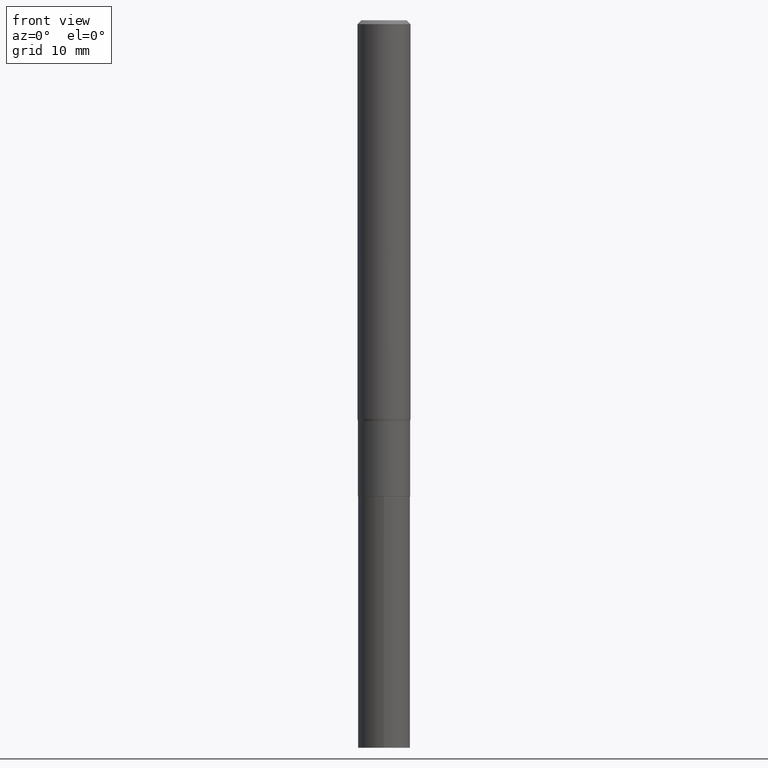
[diagram: clean part render]
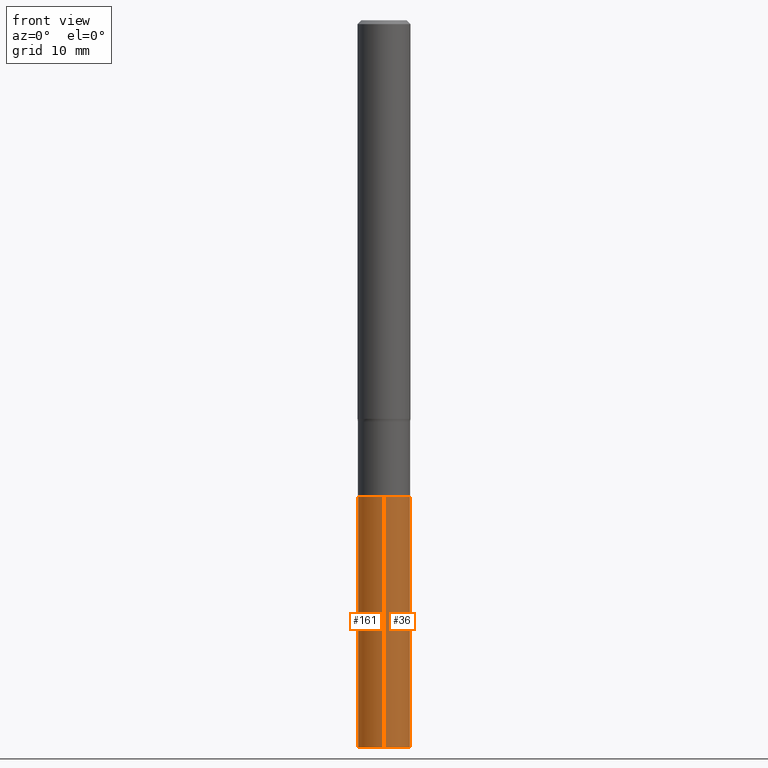
[diagram: same view with one multi-face feature highlighted, each face labeled with its STEP entity id]
A machine part, front view. The highlighted faces form ONE feature: a constant-radius fillet chain: 2 tangent blend faces with common blend radius 3.9497 mm. The faces share edges in the B-rep.
Their STEP definitions:
[1] entity #36 (Cylinder):
#15 = EDGE_CURVE ( 'NONE', #348, #135, #421, .T. ) ;
#23 = CARTESIAN_POINT ( 'NONE',  ( 1.059052181758107427E-28, -1.512065839414336504E-14, -4.330700000000001104 ) ) ;
#36 = ADVANCED_FACE ( 'NONE', ( #238 ), #380, .T. ) ;
#61 = ORIENTED_EDGE ( 'NONE', *, *, #180, .T. ) ;
#88 = DIRECTION ( 'NONE',  ( -6.982962677686265133E-15, -1.000000000000000000, 3.513630860018345064E-15 ) ) ;
#92 = AXIS2_PLACEMENT_3D ( 'NONE', #23, #458, #132 ) ;
#96 = DIRECTION ( 'NONE',  ( -2.445422053935872077E-29, 3.491548290725064953E-15, 1.000000000000000000 ) ) ;
#125 = DIRECTION ( 'NONE',  ( -2.445422053935872077E-29, 3.491548290725064953E-15, 1.000000000000000000 ) ) ;
#132 = DIRECTION ( 'NONE',  ( -6.982962677686265133E-15, -1.000000000000000000, 3.513630860018345064E-15 ) ) ;
#135 = VERTEX_POINT ( 'NONE', #468 ) ;
#145 = LINE ( 'NONE', #284, #350 ) ;
#150 = CARTESIAN_POINT ( 'NONE',  ( -1.085850696380108364E-15, -0.1555000000000151261, -4.330700000000000216 ) ) ;
#164 = ORIENTED_EDGE ( 'NONE', *, *, #435, .F. ) ;
#180 = EDGE_CURVE ( 'NONE', #281, #332, #145, .T. ) ;
#189 = AXIS2_PLACEMENT_3D ( 'NONE', #240, #382, #205 ) ;
#205 = DIRECTION ( 'NONE',  ( -6.982962677686265133E-15, -1.000000000000000000, 3.513630860018345064E-15 ) ) ;
#230 = ORIENTED_EDGE ( 'NONE', *, *, #450, .T. ) ;
#238 = FACE_OUTER_BOUND ( 'NONE', #346, .T. ) ;
#240 = CARTESIAN_POINT ( 'NONE',  ( 6.932170424893007423E-29, -9.897302151218665974E-15, -2.834700000000000220 ) ) ;
#281 = VERTEX_POINT ( 'NONE', #367 ) ;
#284 = CARTESIAN_POINT ( 'NONE',  ( 1.104893954107024810E-15, 0.1554999999999900906, -2.834700000000000664 ) ) ;
#302 = CIRCLE ( 'NONE', #434, 0.1554999999999999993 ) ;
#309 = CARTESIAN_POINT ( 'NONE',  ( -1.085850696380145046E-15, -0.1555000000000098803, -2.834699999999999775 ) ) ;
#332 = VERTEX_POINT ( 'NONE', #366 ) ;
#342 = CIRCLE ( 'NONE', #92, 0.1554999999999999993 ) ;
#346 = EDGE_LOOP ( 'NONE', ( #230, #61, #164, #374 ) ) ;
#348 = VERTEX_POINT ( 'NONE', #150 ) ;
#350 = VECTOR ( 'NONE', #427, 39.37007874015748143 ) ;
#366 = CARTESIAN_POINT ( 'NONE',  ( 1.104893954107061689E-15, 0.1554999999999900906, -2.834700000000000664 ) ) ;
#367 = CARTESIAN_POINT ( 'NONE',  ( 1.104893954107042953E-15, 0.1554999999999848725, -4.330700000000001104 ) ) ;
#374 = ORIENTED_EDGE ( 'NONE', *, *, #15, .F. ) ;
#380 = CYLINDRICAL_SURFACE ( 'NONE', #189, 0.1554999999999999993 ) ;
#381 = CARTESIAN_POINT ( 'NONE',  ( 6.932170424893007423E-29, -9.897302151218665974E-15, -2.834700000000000220 ) ) ;
#382 = DIRECTION ( 'NONE',  ( -2.445422053935872077E-29, 3.491548290725064953E-15, 1.000000000000000000 ) ) ;
#391 = VECTOR ( 'NONE', #96, 39.37007874015748143 ) ;
#421 = LINE ( 'NONE', #309, #391 ) ;
#427 = DIRECTION ( 'NONE',  ( -2.445422053935872077E-29, 3.491548290725064953E-15, 1.000000000000000000 ) ) ;
#434 = AXIS2_PLACEMENT_3D ( 'NONE', #381, #125, #88 ) ;
#435 = EDGE_CURVE ( 'NONE', #135, #332, #302, .T. ) ;
#450 = EDGE_CURVE ( 'NONE', #348, #281, #342, .T. ) ;
#458 = DIRECTION ( 'NONE',  ( -2.445422053935872077E-29, 3.491548290725064953E-15, 1.000000000000000000 ) ) ;
#468 = CARTESIAN_POINT ( 'NONE',  ( -1.085850696380145046E-15, -0.1555000000000098803, -2.834699999999999775 ) ) ;
[2] entity #161 (Cylinder):
#10 = AXIS2_PLACEMENT_3D ( 'NONE', #51, #224, #268 ) ;
#15 = EDGE_CURVE ( 'NONE', #348, #135, #421, .T. ) ;
#32 = DIRECTION ( 'NONE',  ( -2.445422053935872077E-29, 3.491548290725064953E-15, 1.000000000000000000 ) ) ;
#40 = DIRECTION ( 'NONE',  ( -2.445422053935872077E-29, 3.491548290725064953E-15, 1.000000000000000000 ) ) ;
#50 = EDGE_CURVE ( 'NONE', #332, #135, #327, .T. ) ;
#51 = CARTESIAN_POINT ( 'NONE',  ( 1.059052181758107427E-28, -1.512065839414336504E-14, -4.330700000000001104 ) ) ;
#96 = DIRECTION ( 'NONE',  ( -2.445422053935872077E-29, 3.491548290725064953E-15, 1.000000000000000000 ) ) ;
#98 = ORIENTED_EDGE ( 'NONE', *, *, #186, .T. ) ;
#103 = DIRECTION ( 'NONE',  ( -6.982962677686265133E-15, -1.000000000000000000, 3.513630860018345064E-15 ) ) ;
#122 = ORIENTED_EDGE ( 'NONE', *, *, #50, .F. ) ;
#135 = VERTEX_POINT ( 'NONE', #468 ) ;
#145 = LINE ( 'NONE', #284, #350 ) ;
#150 = CARTESIAN_POINT ( 'NONE',  ( -1.085850696380108364E-15, -0.1555000000000151261, -4.330700000000000216 ) ) ;
#161 = ADVANCED_FACE ( 'NONE', ( #213 ), #361, .T. ) ;
#168 = AXIS2_PLACEMENT_3D ( 'NONE', #173, #40, #181 ) ;
#173 = CARTESIAN_POINT ( 'NONE',  ( 6.932170424893007423E-29, -9.897302151218665974E-15, -2.834700000000000220 ) ) ;
#180 = EDGE_CURVE ( 'NONE', #281, #332, #145, .T. ) ;
#181 = DIRECTION ( 'NONE',  ( -6.982962677686265133E-15, -1.000000000000000000, 3.513630860018345064E-15 ) ) ;
#182 = CIRCLE ( 'NONE', #10, 0.1554999999999999993 ) ;
#186 = EDGE_CURVE ( 'NONE', #281, #348, #182, .T. ) ;
#209 = CARTESIAN_POINT ( 'NONE',  ( 6.932170424893007423E-29, -9.897302151218665974E-15, -2.834700000000000220 ) ) ;
#213 = FACE_OUTER_BOUND ( 'NONE', #225, .T. ) ;
#224 = DIRECTION ( 'NONE',  ( -2.445422053935872077E-29, 3.491548290725064953E-15, 1.000000000000000000 ) ) ;
#225 = EDGE_LOOP ( 'NONE', ( #227, #98, #313, #122 ) ) ;
#227 = ORIENTED_EDGE ( 'NONE', *, *, #180, .F. ) ;
#252 = AXIS2_PLACEMENT_3D ( 'NONE', #209, #32, #103 ) ;
#268 = DIRECTION ( 'NONE',  ( -6.982962677686265133E-15, -1.000000000000000000, 3.513630860018345064E-15 ) ) ;
#281 = VERTEX_POINT ( 'NONE', #367 ) ;
#284 = CARTESIAN_POINT ( 'NONE',  ( 1.104893954107024810E-15, 0.1554999999999900906, -2.834700000000000664 ) ) ;
#309 = CARTESIAN_POINT ( 'NONE',  ( -1.085850696380145046E-15, -0.1555000000000098803, -2.834699999999999775 ) ) ;
#313 = ORIENTED_EDGE ( 'NONE', *, *, #15, .T. ) ;
#327 = CIRCLE ( 'NONE', #252, 0.1554999999999999993 ) ;
#332 = VERTEX_POINT ( 'NONE', #366 ) ;
#348 = VERTEX_POINT ( 'NONE', #150 ) ;
#350 = VECTOR ( 'NONE', #427, 39.37007874015748143 ) ;
#361 = CYLINDRICAL_SURFACE ( 'NONE', #168, 0.1554999999999999993 ) ;
#366 = CARTESIAN_POINT ( 'NONE',  ( 1.104893954107061689E-15, 0.1554999999999900906, -2.834700000000000664 ) ) ;
#367 = CARTESIAN_POINT ( 'NONE',  ( 1.104893954107042953E-15, 0.1554999999999848725, -4.330700000000001104 ) ) ;
#391 = VECTOR ( 'NONE', #96, 39.37007874015748143 ) ;
#421 = LINE ( 'NONE', #309, #391 ) ;
#427 = DIRECTION ( 'NONE',  ( -2.445422053935872077E-29, 3.491548290725064953E-15, 1.000000000000000000 ) ) ;
#468 = CARTESIAN_POINT ( 'NONE',  ( -1.085850696380145046E-15, -0.1555000000000098803, -2.834699999999999775 ) ) ;